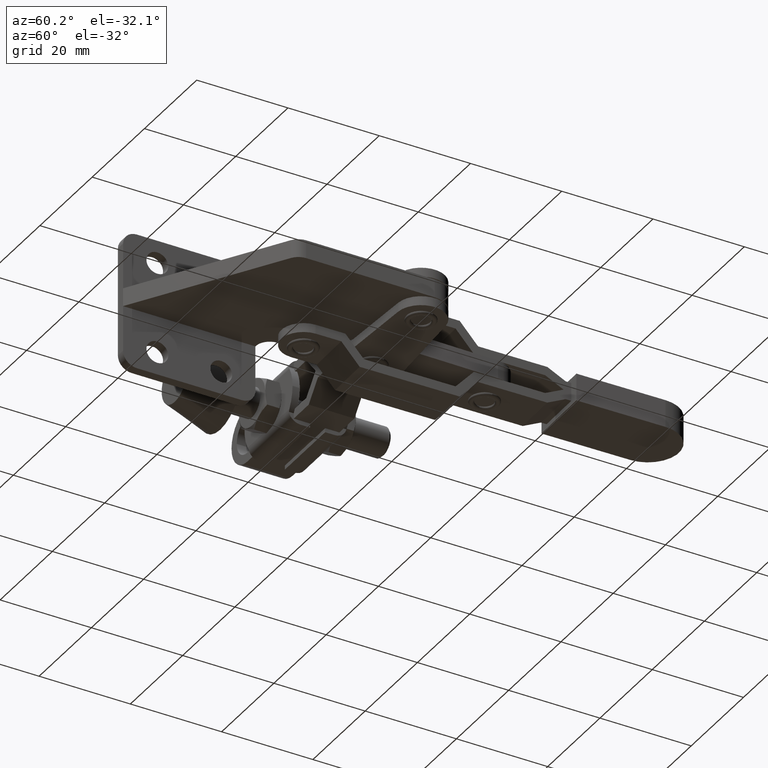
[diagram: clean part render]
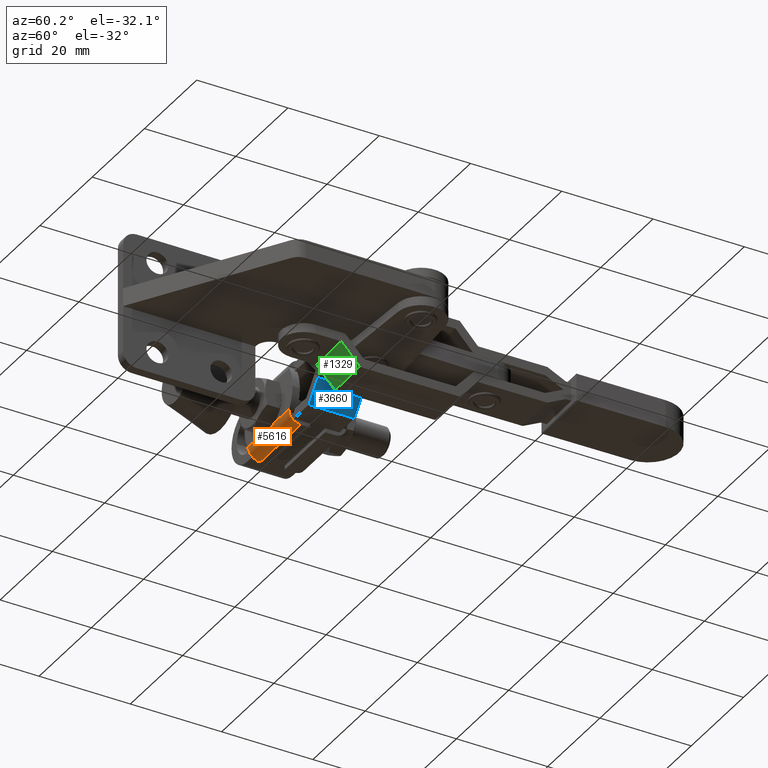
[diagram: same view with three faces highlighted in distinct colors, each labeled with its STEP entity id]
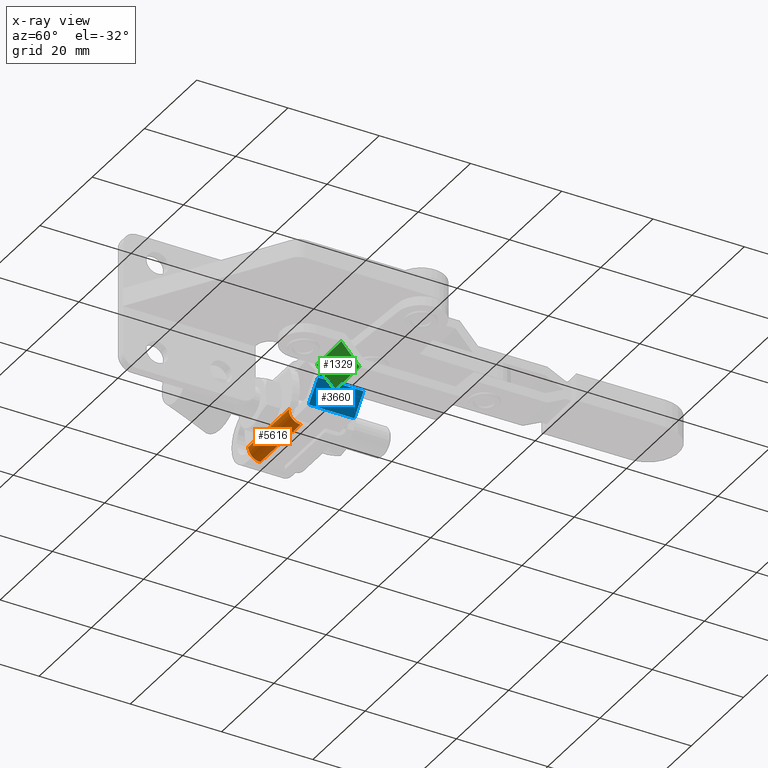
[diagram: x-ray of the same camera — body ghosted, the three highlighted faces saturated]
A machine part, auxiliary view with three faces highlighted in distinct colors.
The next image is the same camera in x-ray (body ghosted, the three faces saturated) — at least one of them is partly hidden behind the body in this view.
Their STEP definitions:

[orange] entity #5616 — the highlighted cylindrical surface (edge-blend (fillet) strip) has radius 2.6 mm, axis along (-1, 0, -0).
#485 = EDGE_CURVE ( 'NONE', #9452, #9971, #2181, .T. ) ;
#598 = CARTESIAN_POINT ( 'NONE',  ( -16.54293190662888000, 43.72999999999996800, -4.500000000000042600 ) ) ;
#622 = VERTEX_POINT ( 'NONE', #598 ) ;
#939 = EDGE_CURVE ( 'NONE', #9452, #1549, #9782, .T. ) ;
#943 = CARTESIAN_POINT ( 'NONE',  ( -26.55020828292007100, 43.74670855255509800, -4.837617891610693600 ) ) ;
#981 = CARTESIAN_POINT ( 'NONE',  ( -26.44507520892225500, 46.32999999999998400, -7.100000000000056500 ) ) ;
#1073 = ORIENTED_EDGE ( 'NONE', *, *, #9853, .F. ) ;
#1153 = AXIS2_PLACEMENT_3D ( 'NONE', #4032, #3741, #8137 ) ;
#1432 = DIRECTION ( 'NONE',  ( 0.0000000000000000000, 2.668805347656610300E-015, -1.000000000000000000 ) ) ;
#1448 = DIRECTION ( 'NONE',  ( 1.000000000000000000, -1.734723475976806700E-018, 1.561251128379126100E-017 ) ) ;
#1483 = CARTESIAN_POINT ( 'NONE',  ( -26.44507520892225500, 46.32999999999998400, -4.500000000000040900 ) ) ;
#1549 = VERTEX_POINT ( 'NONE', #5639 ) ;
#1577 = CARTESIAN_POINT ( 'NONE',  ( -26.65080539577532900, 43.72999999999996800, -4.671032454301400300 ) ) ;
#1605 = CARTESIAN_POINT ( 'NONE',  ( -10.99968754787615700, 43.77852983556536500, -5.000000000000090600 ) ) ;
#1990 = CARTESIAN_POINT ( 'NONE',  ( -10.99968754787615700, 43.77852983556536500, -5.000000000000090600 ) ) ;
#2036 = ORIENTED_EDGE ( 'NONE', *, *, #485, .T. ) ;
#2181 = B_SPLINE_CURVE_WITH_KNOTS ( 'NONE', 3,
 ( #1605, #6911, #8444, #3428 ),
 .UNSPECIFIED., .F., .F.,
 ( 4, 4 ),
 ( 3.878959614448864200E-018, 0.0005859559174583803000 ),
 .UNSPECIFIED. ) ;
#2217 = CARTESIAN_POINT ( 'NONE',  ( -26.44507520892225500, 43.77852983556536500, -5.000000000000075500 ) ) ;
#2285 = EDGE_LOOP ( 'NONE', ( #9504, #5450, #2036, #6335, #8216, #1073, #4998, #4969 ) ) ;
#2337 = CARTESIAN_POINT ( 'NONE',  ( -26.74671935732301300, 43.72999999999996800, -4.500000000000036400 ) ) ;
#2521 = VERTEX_POINT ( 'NONE', #981 ) ;
#3020 = CIRCLE ( 'NONE', #5013, 2.600000000000015600 ) ;
#3428 = CARTESIAN_POINT ( 'NONE',  ( -10.69804339947535600, 43.72999999999996800, -4.500000000000041700 ) ) ;
#3514 = AXIS2_PLACEMENT_3D ( 'NONE', #8623, #5496, #4640 ) ;
#3634 = CARTESIAN_POINT ( 'NONE',  ( -18.72238137839922000, 43.72999999999996800, -4.500000000000040900 ) ) ;
#3741 = DIRECTION ( 'NONE',  ( -1.000000000000000000, 1.734723475976806700E-018, -1.561251128379126100E-017 ) ) ;
#3759 = FACE_OUTER_BOUND ( 'NONE', #2285, .T. ) ;
#3811 = DIRECTION ( 'NONE',  ( 1.000000000000000000, -1.734723475976806700E-018, 1.561251128379126100E-017 ) ) ;
#4032 = CARTESIAN_POINT ( 'NONE',  ( -10.60175134372834400, 46.32999999999998400, -4.500000000000040900 ) ) ;
#4086 = CARTESIAN_POINT ( 'NONE',  ( -10.69804339947535600, 43.72999999999996800, -4.500000000000041700 ) ) ;
#4277 = EDGE_CURVE ( 'NONE', #622, #9971, #7869, .T. ) ;
#4304 = CARTESIAN_POINT ( 'NONE',  ( -26.74671935732301300, 43.72999999999996800, -4.500000000000036400 ) ) ;
#4640 = DIRECTION ( 'NONE',  ( 0.0000000000000000000, 0.0000000000000000000, 1.000000000000000000 ) ) ;
#4759 = CARTESIAN_POINT ( 'NONE',  ( -20.90183085016956400, 43.72999999999996800, -4.500000000000042600 ) ) ;
#4969 = ORIENTED_EDGE ( 'NONE', *, *, #6489, .T. ) ;
#4998 = ORIENTED_EDGE ( 'NONE', *, *, #9233, .T. ) ;
#5013 = AXIS2_PLACEMENT_3D ( 'NONE', #1483, #1448, #1432 ) ;
#5141 = LINE ( 'NONE', #9807, #9335 ) ;
#5421 = VECTOR ( 'NONE', #3811, 1000.000000000000000 ) ;
#5450 = ORIENTED_EDGE ( 'NONE', *, *, #939, .F. ) ;
#5496 = DIRECTION ( 'NONE',  ( 1.000000000000000000, -1.734723475976806700E-018, 1.561251128379126100E-017 ) ) ;
#5616 = ADVANCED_FACE ( 'NONE', ( #3759 ), #9194, .T. ) ;
#5639 = CARTESIAN_POINT ( 'NONE',  ( -10.99968754787619000, 46.32999999999998400, -7.100000000000056500 ) ) ;
#6196 = EDGE_CURVE ( 'NONE', #1549, #2521, #5141, .T. ) ;
#6335 = ORIENTED_EDGE ( 'NONE', *, *, #4277, .F. ) ;
#6489 = EDGE_CURVE ( 'NONE', #9081, #2521, #3020, .T. ) ;
#6911 = CARTESIAN_POINT ( 'NONE',  ( -10.89455447387830300, 43.74670855255510600, -4.837617891610723800 ) ) ;
#6991 = VERTEX_POINT ( 'NONE', #4304 ) ;
#7117 = CARTESIAN_POINT ( 'NONE',  ( -26.44507520892225500, 43.77852983556536500, -5.000000000000075500 ) ) ;
#7564 = LINE ( 'NONE', #3634, #5421 ) ;
#7669 = CARTESIAN_POINT ( 'NONE',  ( -18.72238137839922000, 43.72999999999996800, -4.500000000000040900 ) ) ;
#7844 = CARTESIAN_POINT ( 'NONE',  ( -18.72238137839922000, 43.72999999999996800, -4.500000000000040900 ) ) ;
#7869 = LINE ( 'NONE', #7844, #7994 ) ;
#7979 = DIRECTION ( 'NONE',  ( 1.000000000000000000, -1.734723475976806700E-018, 1.561251128379126100E-017 ) ) ;
#7994 = VECTOR ( 'NONE', #7979, 1000.000000000000000 ) ;
#8137 = DIRECTION ( 'NONE',  ( 0.0000000000000000000, 0.0000000000000000000, -1.000000000000000000 ) ) ;
#8216 = ORIENTED_EDGE ( 'NONE', *, *, #8552, .F. ) ;
#8444 = CARTESIAN_POINT ( 'NONE',  ( -10.79395736102304700, 43.72999999999996800, -4.671032454301419000 ) ) ;
#8552 = EDGE_CURVE ( 'NONE', #9526, #622, #9386, .T. ) ;
#8623 = CARTESIAN_POINT ( 'NONE',  ( -10.99968754787619000, 46.32999999999998400, -4.500000000000040900 ) ) ;
#9081 = VERTEX_POINT ( 'NONE', #7117 ) ;
#9153 = VECTOR ( 'NONE', #9871, 1000.000000000000000 ) ;
#9194 = CYLINDRICAL_SURFACE ( 'NONE', #1153, 2.600000000000015600 ) ;
#9233 = EDGE_CURVE ( 'NONE', #6991, #9081, #10000, .T. ) ;
#9335 = VECTOR ( 'NONE', #9772, 1000.000000000000000 ) ;
#9386 = LINE ( 'NONE', #7669, #9153 ) ;
#9452 = VERTEX_POINT ( 'NONE', #1990 ) ;
#9504 = ORIENTED_EDGE ( 'NONE', *, *, #6196, .F. ) ;
#9526 = VERTEX_POINT ( 'NONE', #4759 ) ;
#9772 = DIRECTION ( 'NONE',  ( -1.000000000000000000, 1.734723475976806700E-018, -1.561251128379126100E-017 ) ) ;
#9782 = CIRCLE ( 'NONE', #3514, 2.600000000000016100 ) ;
#9807 = CARTESIAN_POINT ( 'NONE',  ( -18.72238137839922000, 46.32999999999998400, -7.100000000000056500 ) ) ;
#9853 = EDGE_CURVE ( 'NONE', #6991, #9526, #7564, .T. ) ;
#9871 = DIRECTION ( 'NONE',  ( 1.000000000000000000, -1.734723475976806700E-018, 1.561251128379126100E-017 ) ) ;
#9971 = VERTEX_POINT ( 'NONE', #4086 ) ;
#10000 = B_SPLINE_CURVE_WITH_KNOTS ( 'NONE', 3,
 ( #2337, #1577, #943, #2217 ),
 .UNSPECIFIED., .F., .F.,
 ( 4, 4 ),
 ( 6.992893892674702500E-018, 0.0005859559174583633900 ),
 .UNSPECIFIED. ) ;

[blue] entity #3660 — the highlighted planar face has unit normal (-0.7682, -0, 0.6402).
#179 = VERTEX_POINT ( 'NONE', #589 ) ;
#217 = ORIENTED_EDGE ( 'NONE', *, *, #1005, .T. ) ;
#350 = FACE_OUTER_BOUND ( 'NONE', #5232, .T. ) ;
#589 = CARTESIAN_POINT ( 'NONE',  ( -5.233250108031009900, 44.82999999999992700, -6.200000000000009100 ) ) ;
#894 = VERTEX_POINT ( 'NONE', #8111 ) ;
#1005 = EDGE_CURVE ( 'NONE', #894, #179, #6769, .T. ) ;
#1227 = VERTEX_POINT ( 'NONE', #2448 ) ;
#1770 = LINE ( 'NONE', #5384, #8065 ) ;
#2132 = DIRECTION ( 'NONE',  ( 0.6401843996644831500, 1.397071869528716800E-016, 0.7682212795973730700 ) ) ;
#2448 = CARTESIAN_POINT ( 'NONE',  ( -5.233250108031013400, 54.82999999999992000, -6.200000000000009100 ) ) ;
#2469 = PLANE ( 'NONE',  #3384 ) ;
#3384 = AXIS2_PLACEMENT_3D ( 'NONE', #9929, #7243, #10009 ) ;
#3660 = ADVANCED_FACE ( 'NONE', ( #350 ), #2469, .F. ) ;
#3831 = VECTOR ( 'NONE', #2132, 1000.000000000000100 ) ;
#4000 = EDGE_CURVE ( 'NONE', #1227, #179, #8108, .T. ) ;
#5203 = DIRECTION ( 'NONE',  ( -0.6401843996644831500, -1.397071869528716800E-016, -0.7682212795973730700 ) ) ;
#5232 = EDGE_LOOP ( 'NONE', ( #7043, #217, #5781, #7411 ) ) ;
#5299 = CARTESIAN_POINT ( 'NONE',  ( -5.233250108031009900, 44.82999999999992700, -6.200000000000009100 ) ) ;
#5384 = CARTESIAN_POINT ( 'NONE',  ( -1.733250108030950800, 56.10999999999992100, -1.999999999999974500 ) ) ;
#5442 = DIRECTION ( 'NONE',  ( 1.037039377982384700E-016, -1.000000000000000000, 2.919468386120116100E-018 ) ) ;
#5547 = CARTESIAN_POINT ( 'NONE',  ( -1.733250108030950800, 54.82999999999992000, -1.999999999999974500 ) ) ;
#5760 = CARTESIAN_POINT ( 'NONE',  ( -5.233250108031013400, 56.10999999999992100, -6.200000000000009100 ) ) ;
#5781 = ORIENTED_EDGE ( 'NONE', *, *, #4000, .F. ) ;
#6692 = VERTEX_POINT ( 'NONE', #5547 ) ;
#6757 = CARTESIAN_POINT ( 'NONE',  ( -5.233250108031013400, 54.82999999999992000, -6.200000000000009100 ) ) ;
#6769 = LINE ( 'NONE', #5299, #7007 ) ;
#7007 = VECTOR ( 'NONE', #5203, 1000.000000000000100 ) ;
#7036 = EDGE_CURVE ( 'NONE', #6692, #894, #1770, .T. ) ;
#7043 = ORIENTED_EDGE ( 'NONE', *, *, #7036, .T. ) ;
#7164 = DIRECTION ( 'NONE',  ( 1.037039377982384700E-016, -1.000000000000000000, 2.919468386120116100E-018 ) ) ;
#7243 = DIRECTION ( 'NONE',  ( -0.7682212795973730700, -1.630882689401417500E-016, 0.6401843996644831500 ) ) ;
#7411 = ORIENTED_EDGE ( 'NONE', *, *, #9157, .T. ) ;
#7766 = VECTOR ( 'NONE', #7164, 1000.000000000000000 ) ;
#8032 = LINE ( 'NONE', #6757, #3831 ) ;
#8065 = VECTOR ( 'NONE', #5442, 1000.000000000000000 ) ;
#8108 = LINE ( 'NONE', #5760, #7766 ) ;
#8111 = CARTESIAN_POINT ( 'NONE',  ( -1.733250108030950800, 44.82999999999992700, -1.999999999999974500 ) ) ;
#9157 = EDGE_CURVE ( 'NONE', #1227, #6692, #8032, .T. ) ;
#9929 = CARTESIAN_POINT ( 'NONE',  ( -5.233250108031013400, 56.10999999999992100, -6.200000000000009100 ) ) ;
#10009 = DIRECTION ( 'NONE',  ( 0.6401843996644831500, 1.397071869528716800E-016, 0.7682212795973730700 ) ) ;

[green] entity #1329 — the highlighted planar face has unit normal (0.0074, 0.7474, 0.6644).
#421 = VERTEX_POINT ( 'NONE', #1651 ) ;
#772 = EDGE_LOOP ( 'NONE', ( #2409, #2959, #5950, #2743 ) ) ;
#774 = CARTESIAN_POINT ( 'NONE',  ( 4.855603156981455700, 40.77718501520556800, -3.999999999999208200 ) ) ;
#855 = CARTESIAN_POINT ( 'NONE',  ( 14.45513390962325300, 40.68226752954363700, -3.999999999999205500 ) ) ;
#956 = EDGE_CURVE ( 'NONE', #3885, #421, #9425, .T. ) ;
#1329 = ADVANCED_FACE ( 'NONE', ( #3442 ), #7152, .F. ) ;
#1357 = LINE ( 'NONE', #8931, #7906 ) ;
#1651 = CARTESIAN_POINT ( 'NONE',  ( 14.49468286198239000, 44.68207200981105800, -8.499999999999207700 ) ) ;
#1707 = CARTESIAN_POINT ( 'NONE',  ( 14.45513390962325300, 40.68226752954363700, -3.999999999999205500 ) ) ;
#1730 = VERTEX_POINT ( 'NONE', #855 ) ;
#1962 = LINE ( 'NONE', #1707, #9839 ) ;
#2014 = DIRECTION ( 'NONE',  ( -0.006568723452754410600, -0.6643313647698933000, 0.7474093186836595600 ) ) ;
#2376 = VERTEX_POINT ( 'NONE', #774 ) ;
#2409 = ORIENTED_EDGE ( 'NONE', *, *, #5713, .T. ) ;
#2743 = ORIENTED_EDGE ( 'NONE', *, *, #956, .T. ) ;
#2786 = DIRECTION ( 'NONE',  ( -0.006568723452754410600, -0.6643313647698933000, 0.7474093186836595600 ) ) ;
#2959 = ORIENTED_EDGE ( 'NONE', *, *, #4714, .F. ) ;
#3070 = DIRECTION ( 'NONE',  ( 0.007389813884348319700, 0.7473727853661297200, 0.6643638388299200100 ) ) ;
#3442 = FACE_OUTER_BOUND ( 'NONE', #772, .T. ) ;
#3885 = VERTEX_POINT ( 'NONE', #9450 ) ;
#4714 = EDGE_CURVE ( 'NONE', #2376, #1730, #1357, .T. ) ;
#5016 = AXIS2_PLACEMENT_3D ( 'NONE', #10101, #3070, #8590 ) ;
#5713 = EDGE_CURVE ( 'NONE', #421, #1730, #1962, .T. ) ;
#5950 = ORIENTED_EDGE ( 'NONE', *, *, #9605, .F. ) ;
#6279 = DIRECTION ( 'NONE',  ( 0.9999511200668539400, -0.009887238089783870900, 2.593342070832123900E-016 ) ) ;
#7152 = PLANE ( 'NONE',  #5016 ) ;
#7421 = CARTESIAN_POINT ( 'NONE',  ( 4.855603156981455700, 40.77718501520556800, -3.999999999999208200 ) ) ;
#7621 = VECTOR ( 'NONE', #6279, 1000.000000000000100 ) ;
#7684 = LINE ( 'NONE', #7421, #9497 ) ;
#7906 = VECTOR ( 'NONE', #8986, 1000.000000000000100 ) ;
#8590 = DIRECTION ( 'NONE',  ( 0.006568723452754409800, 0.6643313647698933000, -0.7474093186836595600 ) ) ;
#8931 = CARTESIAN_POINT ( 'NONE',  ( 4.855603156981455700, 40.77718501520556800, -3.999999999999208200 ) ) ;
#8986 = DIRECTION ( 'NONE',  ( 0.9999511200668539400, -0.009887238089783870900, 2.593342070832123900E-016 ) ) ;
#9352 = CARTESIAN_POINT ( 'NONE',  ( 4.895152109340592100, 44.77698949547298200, -8.499999999999209500 ) ) ;
#9425 = LINE ( 'NONE', #9352, #7621 ) ;
#9450 = CARTESIAN_POINT ( 'NONE',  ( 4.895152109340592100, 44.77698949547298200, -8.499999999999209500 ) ) ;
#9497 = VECTOR ( 'NONE', #2786, 1000.000000000000000 ) ;
#9605 = EDGE_CURVE ( 'NONE', #3885, #2376, #7684, .T. ) ;
#9839 = VECTOR ( 'NONE', #2014, 1000.000000000000000 ) ;
#10101 = CARTESIAN_POINT ( 'NONE',  ( 4.855603156981455700, 40.77718501520556800, -3.999999999999208200 ) ) ;